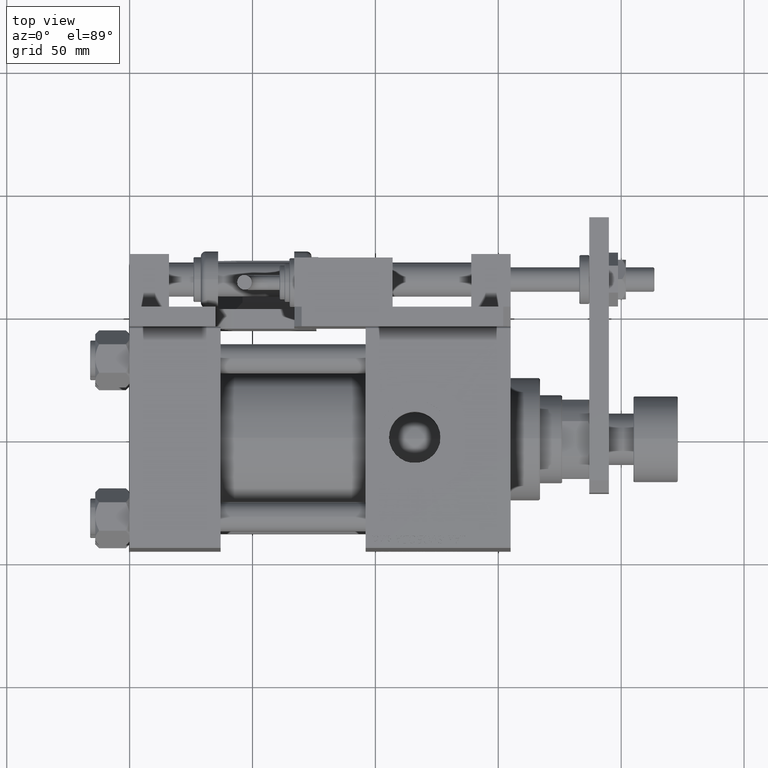
[diagram: clean part render]
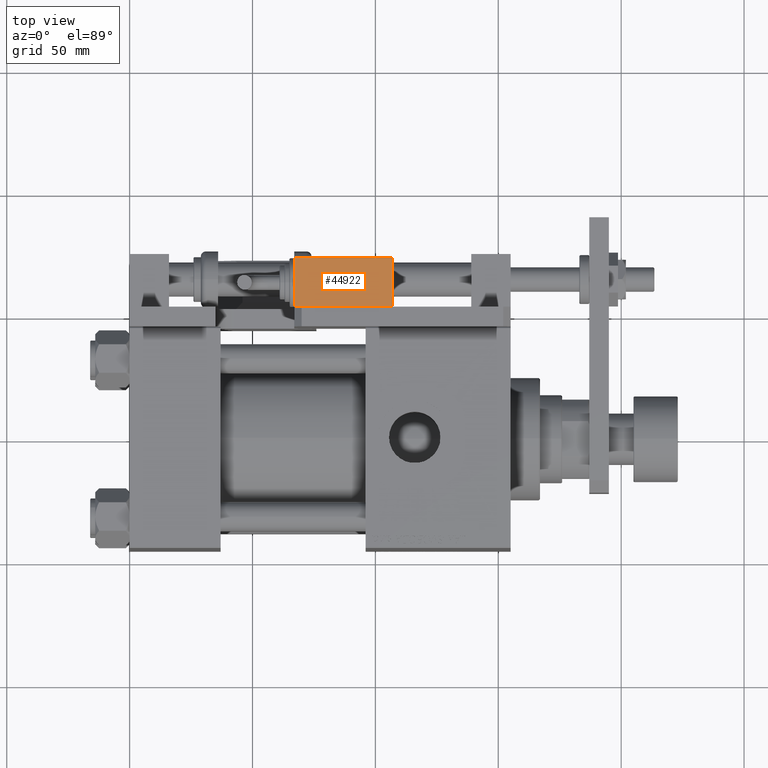
[diagram: same view with one face highlighted and labeled with its STEP entity id]
A machine part, top view. The second image highlights one B-rep face of the part: STEP entity #44922.
In plain terms, the highlighted planar face has unit normal (0, 0, -1).
Its self-contained STEP definition (entity closure, byte-faithful):
#1787 = DIRECTION ( 'NONE',  ( 1.000000000000000000, 0.000000000000000000, 0.000000000000000000 ) ) ;
#5460 = VECTOR ( 'NONE', #37022, 1000.000000000000000 ) ;
#5779 = VECTOR ( 'NONE', #1787, 1000.000000000000000 ) ;
#9334 = VERTEX_POINT ( 'NONE', #51454 ) ;
#9752 = ORIENTED_EDGE ( 'NONE', *, *, #41463, .T. ) ;
#10358 = LINE ( 'NONE', #36590, #31015 ) ;
#12067 = AXIS2_PLACEMENT_3D ( 'NONE', #22034, #22876, #26593 ) ;
#13080 = VERTEX_POINT ( 'NONE', #33905 ) ;
#17471 = FACE_OUTER_BOUND ( 'NONE', #51832, .T. ) ;
#19633 = CARTESIAN_POINT ( 'NONE',  ( 20.00000000000005329, -17.49999999999996092, -9.999999999999998224 ) ) ;
#22034 = CARTESIAN_POINT ( 'NONE',  ( 0.000000000000000000, -17.49999999999996092, 0.000000000000000000 ) ) ;
#22059 = LINE ( 'NONE', #39446, #5779 ) ;
#22876 = DIRECTION ( 'NONE',  ( 0.000000000000000000, 1.000000000000000000, 0.000000000000000000 ) ) ;
#26593 = DIRECTION ( 'NONE',  ( 0.000000000000000000, -0.000000000000000000, 1.000000000000000000 ) ) ;
#26970 = EDGE_CURVE ( 'NONE', #13080, #9334, #22059, .T. ) ;
#31015 = VECTOR ( 'NONE', #49424, 1000.000000000000000 ) ;
#33654 = EDGE_CURVE ( 'NONE', #37380, #13080, #35734, .T. ) ;
#33905 = CARTESIAN_POINT ( 'NONE',  ( -19.99999999999994316, -17.49999999999996092, -9.999999999999998224 ) ) ;
#34420 = ORIENTED_EDGE ( 'NONE', *, *, #26970, .T. ) ;
#34845 = PLANE ( 'NONE',  #12067 ) ;
#34918 = CARTESIAN_POINT ( 'NONE',  ( -19.99999999999994316, -17.49999999999996092, 10.00000000000000000 ) ) ;
#35734 = LINE ( 'NONE', #48283, #37991 ) ;
#36429 = ORIENTED_EDGE ( 'NONE', *, *, #33654, .T. ) ;
#36590 = CARTESIAN_POINT ( 'NONE',  ( -19.99999999999994316, -17.49999999999996092, 10.00000000000000000 ) ) ;
#37022 = DIRECTION ( 'NONE',  ( 0.000000000000000000, 0.000000000000000000, 1.000000000000000000 ) ) ;
#37380 = VERTEX_POINT ( 'NONE', #34918 ) ;
#37991 = VECTOR ( 'NONE', #53135, 1000.000000000000000 ) ;
#38221 = VERTEX_POINT ( 'NONE', #43211 ) ;
#39446 = CARTESIAN_POINT ( 'NONE',  ( -19.99999999999994316, -17.49999999999996092, -9.999999999999998224 ) ) ;
#41290 = LINE ( 'NONE', #19633, #5460 ) ;
#41463 = EDGE_CURVE ( 'NONE', #9334, #38221, #41290, .T. ) ;
#41533 = EDGE_CURVE ( 'NONE', #38221, #37380, #10358, .T. ) ;
#43211 = CARTESIAN_POINT ( 'NONE',  ( 20.00000000000005329, -17.49999999999996092, 10.00000000000000000 ) ) ;
#44922 = ADVANCED_FACE ( 'NONE', ( #17471 ), #34845, .F. ) ;
#48283 = CARTESIAN_POINT ( 'NONE',  ( -19.99999999999994316, -17.49999999999996092, -9.999999999999998224 ) ) ;
#49424 = DIRECTION ( 'NONE',  ( -1.000000000000000000, -0.000000000000000000, -0.000000000000000000 ) ) ;
#50142 = ORIENTED_EDGE ( 'NONE', *, *, #41533, .T. ) ;
#51454 = CARTESIAN_POINT ( 'NONE',  ( 20.00000000000005329, -17.49999999999996092, -9.999999999999998224 ) ) ;
#51832 = EDGE_LOOP ( 'NONE', ( #9752, #50142, #36429, #34420 ) ) ;
#53135 = DIRECTION ( 'NONE',  ( -0.000000000000000000, -0.000000000000000000, -1.000000000000000000 ) ) ;